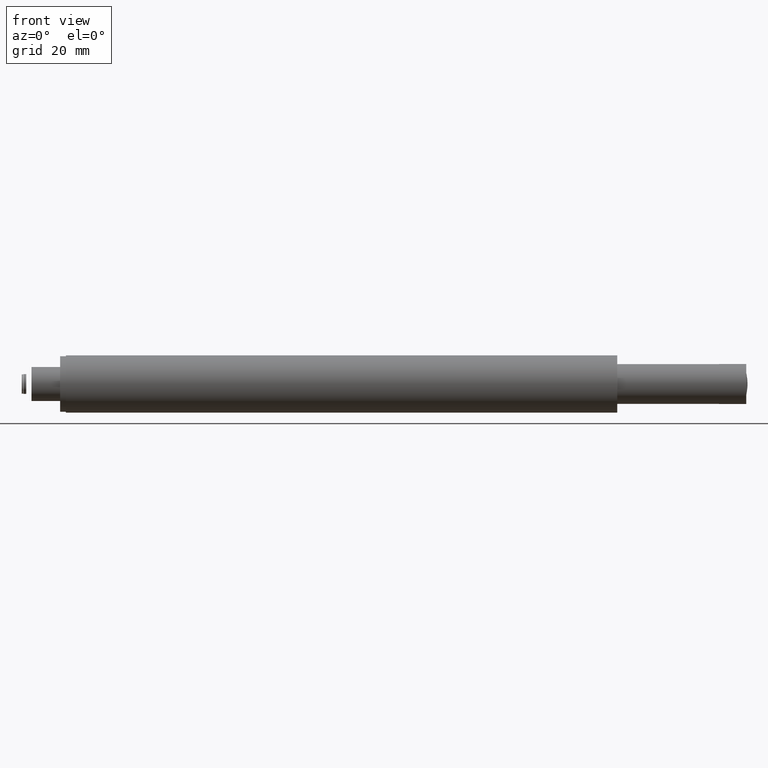
[diagram: clean part render]
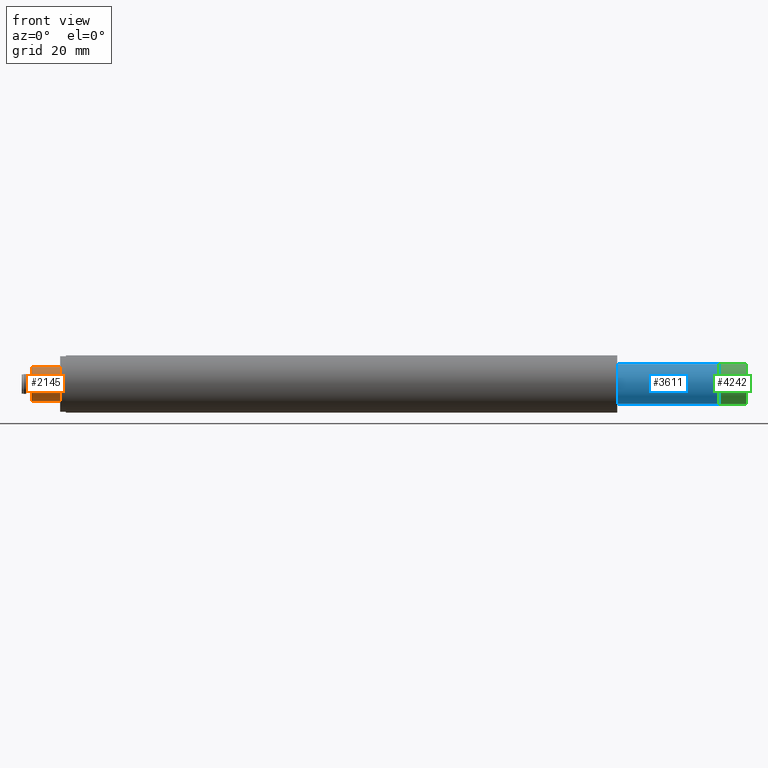
[diagram: same view with three faces highlighted in distinct colors, each labeled with its STEP entity id]
A machine part, front view with three faces highlighted in distinct colors.
Their STEP definitions:

[orange] entity #2145 — the highlighted cylindrical surface (bore or boss wall) has radius 6 mm, axis along (1, -0, 0).
#167 = CARTESIAN_POINT ( 'NONE',  ( -324.9054818016121544, -91.83589552456501792, -4.922027181850991973 ) ) ;
#224 = VERTEX_POINT ( 'NONE', #167 ) ;
#433 = DIRECTION ( 'NONE',  ( 1.000000000000000000, -1.216910645906267142E-16, 4.813857645835648931E-17 ) ) ;
#640 = VERTEX_POINT ( 'NONE', #2871 ) ;
#1095 = CARTESIAN_POINT ( 'NONE',  ( -324.9054818016121544, -88.40462048150591556, -1.738062200271100494E-14 ) ) ;
#1113 = DIRECTION ( 'NONE',  ( 0.000000000000000000, -0.5718791738431822091, -0.8203378636418285907 ) ) ;
#1175 = CARTESIAN_POINT ( 'NONE',  ( -334.9054818016121544, -88.40462048150591556, -1.786200776729456891E-14 ) ) ;
#1216 = AXIS2_PLACEMENT_3D ( 'NONE', #2624, #4121, #1478 ) ;
#1230 = EDGE_LOOP ( 'NONE', ( #1839 ) ) ;
#1305 = AXIS2_PLACEMENT_3D ( 'NONE', #1095, #2231, #1113 ) ;
#1478 = DIRECTION ( 'NONE',  ( 0.000000000000000000, -0.5718791738431804328, -0.8203378636418299230 ) ) ;
#1739 = EDGE_CURVE ( 'NONE', #640, #640, #2951, .T. ) ;
#1839 = ORIENTED_EDGE ( 'NONE', *, *, #1739, .T. ) ;
#2030 = CIRCLE ( 'NONE', #1305, 6.000000000000003553 ) ;
#2145 = ADVANCED_FACE ( 'NONE', ( #4514, #4446 ), #2219, .T. ) ;
#2219 = CYLINDRICAL_SURFACE ( 'NONE', #1216, 5.999999999999998224 ) ;
#2231 = DIRECTION ( 'NONE',  ( -1.000000000000000000, 1.216910645906267142E-16, -4.813857645835648931E-17 ) ) ;
#2624 = CARTESIAN_POINT ( 'NONE',  ( -309.2588068442335612, -88.40462048150591556, -1.662741334395618115E-14 ) ) ;
#2871 = CARTESIAN_POINT ( 'NONE',  ( -334.9054818016121544, -91.83589552456500371, -4.922027181850995525 ) ) ;
#2951 = CIRCLE ( 'NONE', #4491, 5.999999999999998224 ) ;
#3450 = DIRECTION ( 'NONE',  ( 0.000000000000000000, -0.5718791738431804328, -0.8203378636418299230 ) ) ;
#3783 = ORIENTED_EDGE ( 'NONE', *, *, #4337, .T. ) ;
#3907 = EDGE_LOOP ( 'NONE', ( #3783 ) ) ;
#4121 = DIRECTION ( 'NONE',  ( 1.000000000000000000, -1.216910645906267142E-16, 4.813857645835648931E-17 ) ) ;
#4337 = EDGE_CURVE ( 'NONE', #224, #224, #2030, .T. ) ;
#4446 = FACE_OUTER_BOUND ( 'NONE', #1230, .T. ) ;
#4491 = AXIS2_PLACEMENT_3D ( 'NONE', #1175, #433, #3450 ) ;
#4514 = FACE_OUTER_BOUND ( 'NONE', #3907, .T. ) ;

[blue] entity #3611 — the highlighted cylindrical surface (bore or boss wall) has radius 7 mm, axis along (1, 0, -0).
#125 = DIRECTION ( 'NONE',  ( 1.000000000000000000, 5.652398413791728770E-18, -2.767116923664910651E-17 ) ) ;
#192 = DIRECTION ( 'NONE',  ( 0.000000000000000000, 0.9998692301083302869, 0.01617166295020102187 ) ) ;
#278 = CARTESIAN_POINT ( 'NONE',  ( -94.53473960008356869, -81.40553587074757047, 0.1132016406513943058 ) ) ;
#305 = CIRCLE ( 'NONE', #3097, 6.999999999999995559 ) ;
#1041 = EDGE_LOOP ( 'NONE', ( #4070 ) ) ;
#1125 = CARTESIAN_POINT ( 'NONE',  ( -131.2847396000835829, -81.40553587074757047, 0.1132016406513953327 ) ) ;
#1444 = AXIS2_PLACEMENT_3D ( 'NONE', #2491, #4321, #192 ) ;
#1667 = DIRECTION ( 'NONE',  ( 0.000000000000000000, 0.9998692301083302869, 0.01617166295020102187 ) ) ;
#1807 = AXIS2_PLACEMENT_3D ( 'NONE', #4175, #125, #1667 ) ;
#1900 = EDGE_CURVE ( 'NONE', #4003, #4003, #305, .T. ) ;
#2112 = CIRCLE ( 'NONE', #1807, 6.999999999999995559 ) ;
#2137 = DIRECTION ( 'NONE',  ( -1.000000000000000000, -5.652398413791728770E-18, 2.767116923664910651E-17 ) ) ;
#2491 = CARTESIAN_POINT ( 'NONE',  ( -134.3380624930890974, -88.40462048150587293, -1.167060619880978917E-14 ) ) ;
#2559 = DIRECTION ( 'NONE',  ( 0.000000000000000000, 0.9998692301083302869, 0.01617166295020102187 ) ) ;
#2886 = FACE_OUTER_BOUND ( 'NONE', #1041, .T. ) ;
#3097 = AXIS2_PLACEMENT_3D ( 'NONE', #4015, #2137, #2559 ) ;
#3152 = ORIENTED_EDGE ( 'NONE', *, *, #4106, .T. ) ;
#3463 = EDGE_LOOP ( 'NONE', ( #3152 ) ) ;
#3554 = CYLINDRICAL_SURFACE ( 'NONE', #1444, 6.999999999999995559 ) ;
#3611 = ADVANCED_FACE ( 'NONE', ( #2886, #4711 ), #3554, .T. ) ;
#3762 = VERTEX_POINT ( 'NONE', #1125 ) ;
#4003 = VERTEX_POINT ( 'NONE', #278 ) ;
#4015 = CARTESIAN_POINT ( 'NONE',  ( -94.53473960008356869, -88.40462048150587293, -1.277201068276313493E-14 ) ) ;
#4070 = ORIENTED_EDGE ( 'NONE', *, *, #1900, .T. ) ;
#4106 = EDGE_CURVE ( 'NONE', #3762, #3762, #2112, .T. ) ;
#4175 = CARTESIAN_POINT ( 'NONE',  ( -131.2847396000835829, -88.40462048150587293, -1.175509521331628104E-14 ) ) ;
#4321 = DIRECTION ( 'NONE',  ( 1.000000000000000000, 5.652398413791728770E-18, -2.767116923664910651E-17 ) ) ;
#4711 = FACE_OUTER_BOUND ( 'NONE', #3463, .T. ) ;

[green] entity #4242 — the highlighted cylindrical surface (bore or boss wall) has radius 7 mm, axis along (1, 0, -0).
#113 = EDGE_LOOP ( 'NONE', ( #3129 ) ) ;
#397 = CARTESIAN_POINT ( 'NONE',  ( -94.53473960008354027, -88.40462048150587293, -1.277415491257453771E-14 ) ) ;
#400 = FACE_OUTER_BOUND ( 'NONE', #113, .T. ) ;
#421 = DIRECTION ( 'NONE',  ( 0.000000000000000000, -0.2550124455936362833, -0.9669377707962144575 ) ) ;
#456 = CARTESIAN_POINT ( 'NONE',  ( -84.99655304044320303, -90.18970760066133607, -6.768564395573514858 ) ) ;
#487 = DIRECTION ( 'NONE',  ( 0.000000000000000000, -0.2550124455936362833, -0.9669377707962144575 ) ) ;
#636 = EDGE_CURVE ( 'NONE', #1850, #1850, #2686, .T. ) ;
#1208 = DIRECTION ( 'NONE',  ( -1.000000000000000000, -5.765602307732382082E-32, 2.775557561562893200E-17 ) ) ;
#1212 = AXIS2_PLACEMENT_3D ( 'NONE', #3820, #1208, #2343 ) ;
#1540 = VERTEX_POINT ( 'NONE', #456 ) ;
#1850 = VERTEX_POINT ( 'NONE', #2210 ) ;
#2132 = ORIENTED_EDGE ( 'NONE', *, *, #3319, .T. ) ;
#2210 = CARTESIAN_POINT ( 'NONE',  ( -94.53473960008354027, -90.18970760066133607, -6.768564395573514858 ) ) ;
#2272 = CYLINDRICAL_SURFACE ( 'NONE', #3608, 7.000000000000000888 ) ;
#2343 = DIRECTION ( 'NONE',  ( 0.000000000000000000, -0.2550124455936362833, -0.9669377707962144575 ) ) ;
#2390 = EDGE_LOOP ( 'NONE', ( #2132 ) ) ;
#2598 = FACE_OUTER_BOUND ( 'NONE', #2390, .T. ) ;
#2686 = CIRCLE ( 'NONE', #4340, 7.000000000000000888 ) ;
#3129 = ORIENTED_EDGE ( 'NONE', *, *, #636, .T. ) ;
#3261 = DIRECTION ( 'NONE',  ( 1.000000000000000000, 5.765602307732382082E-32, -2.775557561562893200E-17 ) ) ;
#3319 = EDGE_CURVE ( 'NONE', #1540, #1540, #3669, .T. ) ;
#3364 = DIRECTION ( 'NONE',  ( 1.000000000000000000, 5.765602307732382082E-32, -2.775557561562893200E-17 ) ) ;
#3608 = AXIS2_PLACEMENT_3D ( 'NONE', #3771, #3364, #421 ) ;
#3669 = CIRCLE ( 'NONE', #1212, 7.000000000000000888 ) ;
#3771 = CARTESIAN_POINT ( 'NONE',  ( -103.7347396000835289, -88.40462048150587293, -1.251880361691075044E-14 ) ) ;
#3820 = CARTESIAN_POINT ( 'NONE',  ( -84.99655304044320303, -88.40462048150587293, -1.303889277086661049E-14 ) ) ;
#4242 = ADVANCED_FACE ( 'NONE', ( #2598, #400 ), #2272, .T. ) ;
#4340 = AXIS2_PLACEMENT_3D ( 'NONE', #397, #3261, #487 ) ;